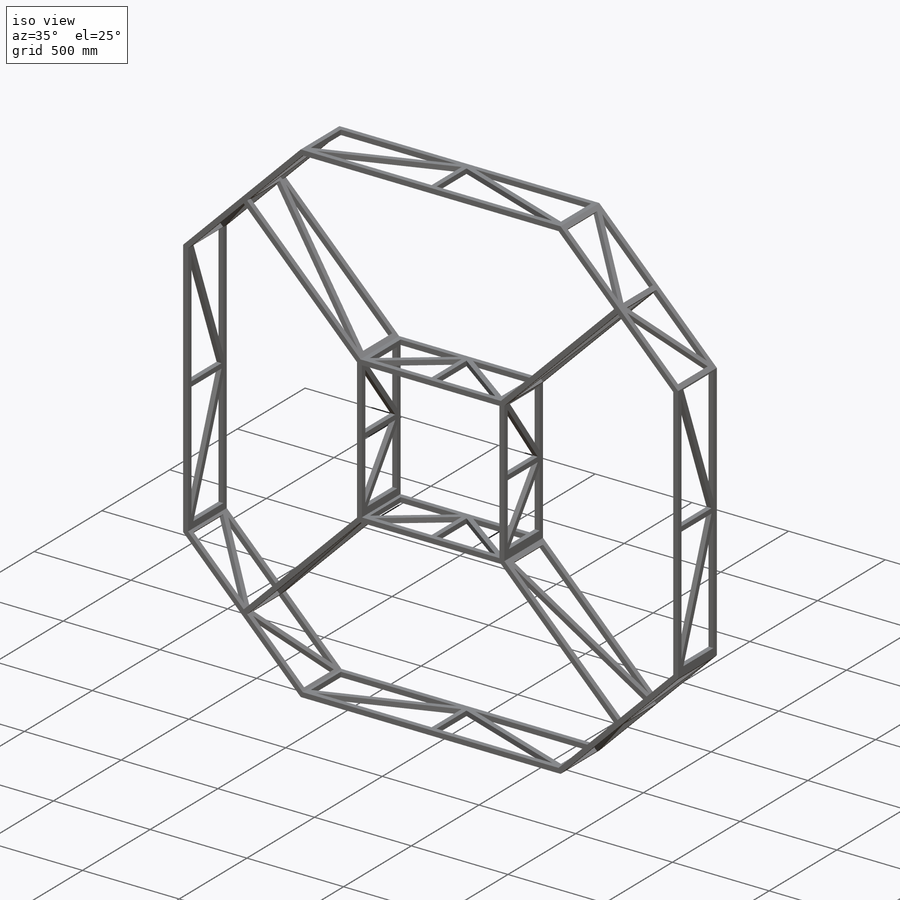
[diagram: iso view]
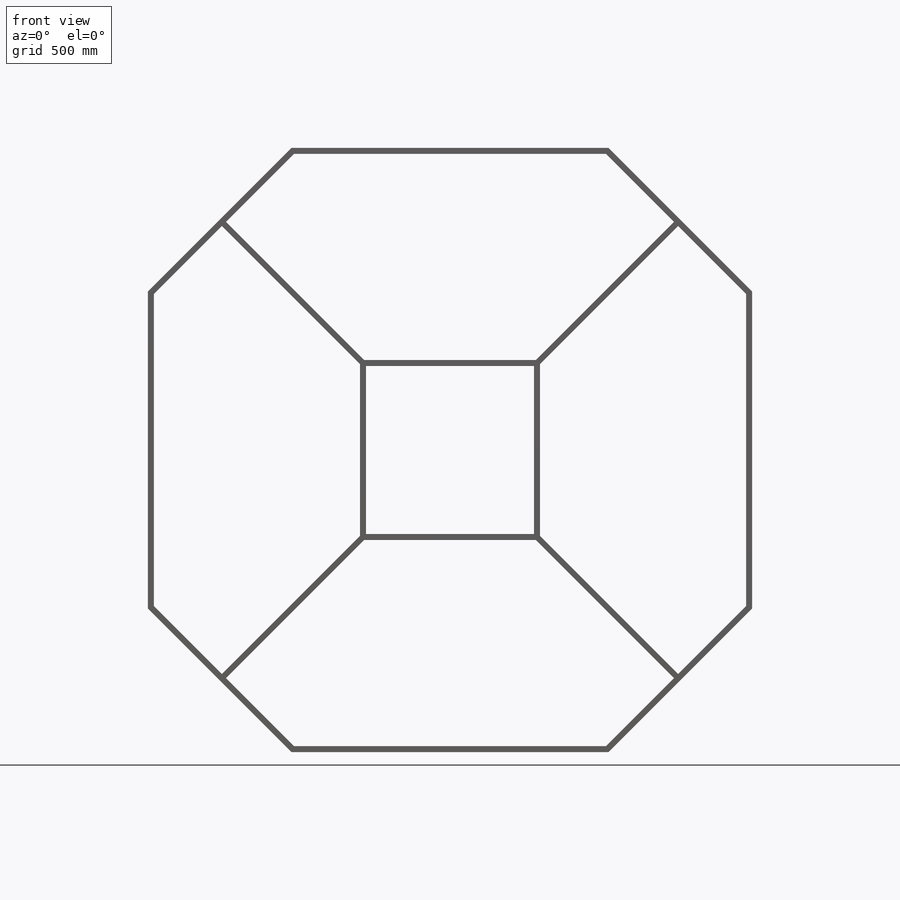
[diagram: front view]
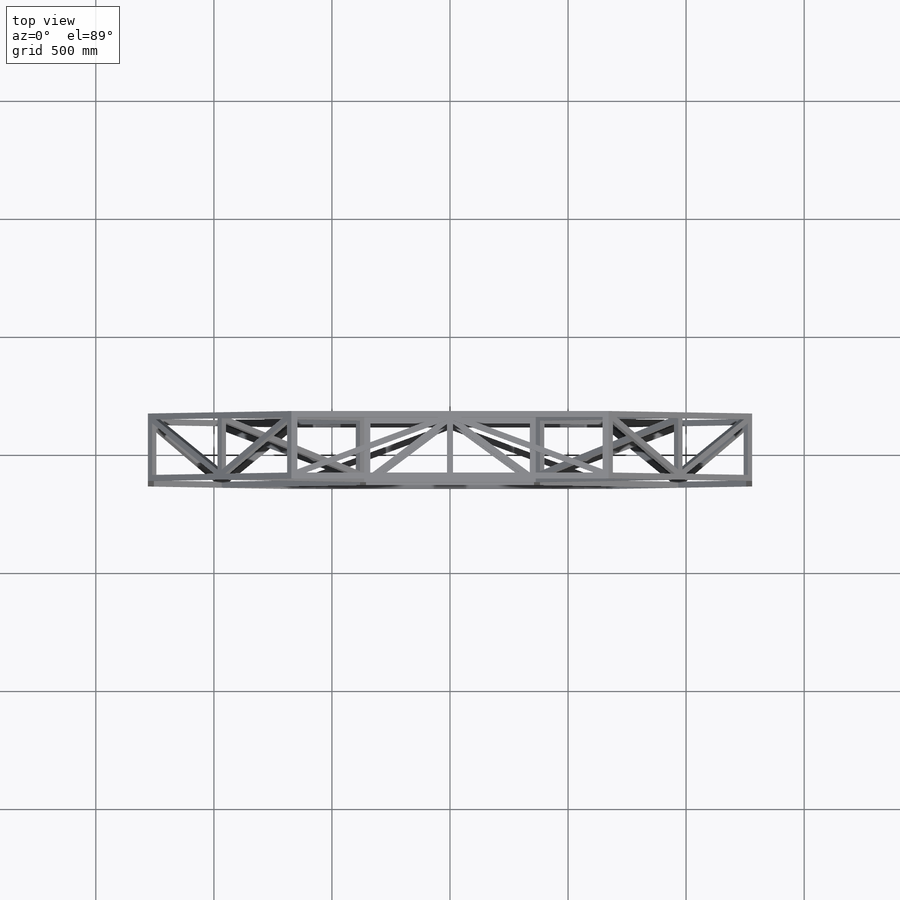
[diagram: top view]
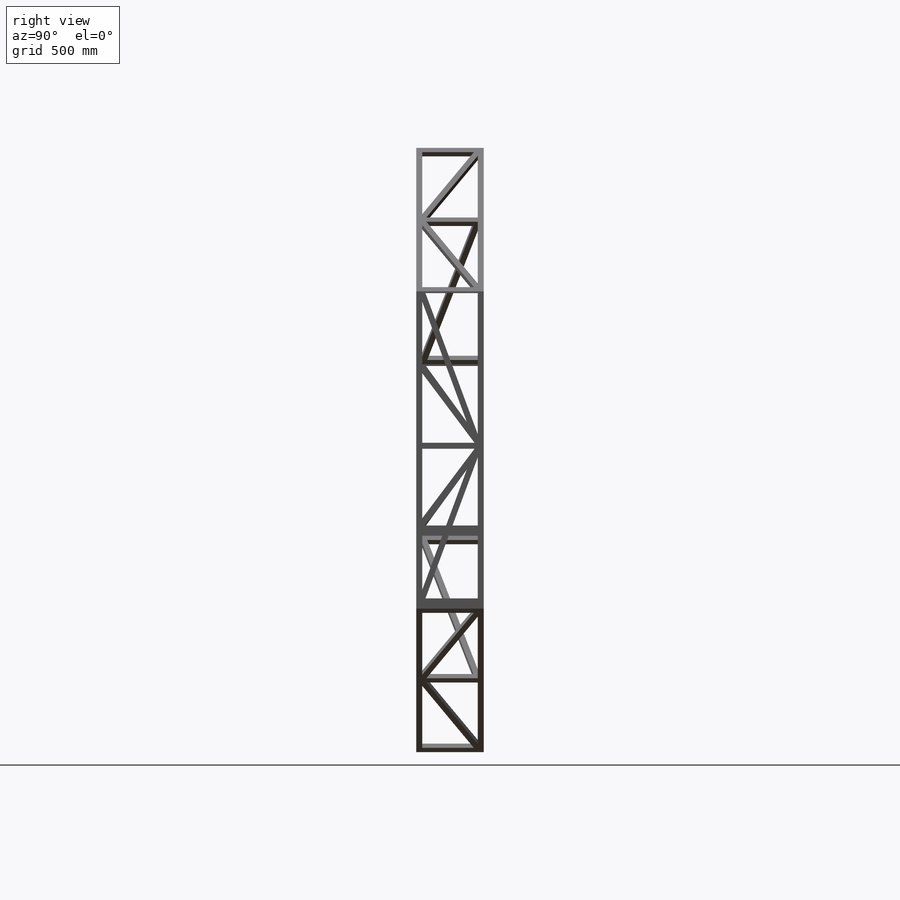
[diagram: right view]
SOLIDWORKS PART (.sldprt)
format: sldprt  version: not decoded by parser v0  size: 652,288 bytes
history: native  units: mm
features: mirror x12, sketch x6, cut_extrude x5, shell x5, material x1, extrude x1 (+14 scaffold rows collapsed)
feature tree (44):
  scaffold x14  (default folders/planes/origin — collapsed)
  material  "6061 Alloy"
  sketch  "Sketch1"  dims[D1=2559.05mm D2=2559.05mm D3=~2759.568885mm D4=~2759.568885mm D5=~859.474332mm D6=~1343.569744mm D7=~859.474332mm D8=~1343.569744mm D9=~859.474332mm D10=~1343.569744mm D11=~859.474332mm D12=~1343.569744mm D13=1279.525mm D14=1279.525mm]
  extrude  "Extrude1"  Depth=285.75mm
  sketch  "Sketch2"  dims[c1.D1=25.4mm c1.D2=25.4mm c1.D3=25.4mm c1.D4=25.4mm c1.D5=12.7mm c1.D6=12.7mm c1.D7=12.7mm c1.D8=12.7mm c1.D9=762.0mm c1.D10=762.0mm c1.D11=~918.971564mm c2.D9=711.2mm c2.D10=711.2mm c2.D11=25.4mm c2.D12=25.4mm c2.D13=25.4mm c2.D14=25.4mm c2.D15=25.4mm c2.D16=25.4mm c2.D17=25.4mm c2.D18=25.4mm c2.D19=25.4mm c2.D20=25.4mm c2.D21=25.4mm c2.D22=25.4mm]
  cut_extrude  "Extrude2"  Depth=285.75mm
  sketch  "Sketch3"  dims[c1.D1=25.4mm c1.D2=25.4mm c1.D3=25.4mm c1.D4=~592.897956mm c2.D4=0.0deg c2.D5=25.4mm c3.D4=25.4mm c3.D6=12.7mm c3.D7=12.7mm]
  cut_extrude  "Extrude3"  Depth=25.4mm
  mirror  "Mirror1"
  mirror  "Mirror2"
  mirror  "Mirror3"
  sketch  "Sketch4"  dims[D1=25.4mm D2=25.4mm D3=25.4mm D4=25.4mm D5=~8.603424mm]
  cut_extrude  "Extrude4"  Depth=50.8mm
  mirror  "Mirror4"
  mirror  "Mirror5"
  mirror  "Mirror6"
  sketch  "Sketch5"  dims[c1.D1=25.4mm c1.D2=~367.942864mm c2.D2=6e-06deg c2.D3=~375.836831mm c3.D3=0.0deg c3.D4=~27.597732mm c3.D2=25.4mm c4.D3=25.4mm]
  cut_extrude  "Extrude5"  Depth=50.8mm
  mirror  "Mirror11"
  mirror  "Mirror12"
  mirror  "Mirror13"
  sketch  "Sketch6"  dims[D1=25.4mm D2=25.4mm D3=25.4mm D4=25.4mm D5=25.4mm]
  cut_extrude  "Extrude6"  Depth=50.8mm
  mirror  "Mirror14"
  mirror  "Mirror15"
  mirror  "Mirror16"
  shell  "Shell2"  Thickness=2.54mm faceID=199
  shell  "FaceIDTag-201"  Thickness=201 faceID=201
  shell  "FaceIDTag-203"  Thickness=203 faceID=203
  shell  "FaceIDTag-205"  Thickness=205 faceID=205
  shell  "FaceIDTag-207"  Thickness=207 faceID=207
decode coverage: 17 of 29 modeling features carry decoded parameters
note: ~ marks probable driven/reference dimensions
note: suppression state not decoded; provenance and decode notes live in map.json
